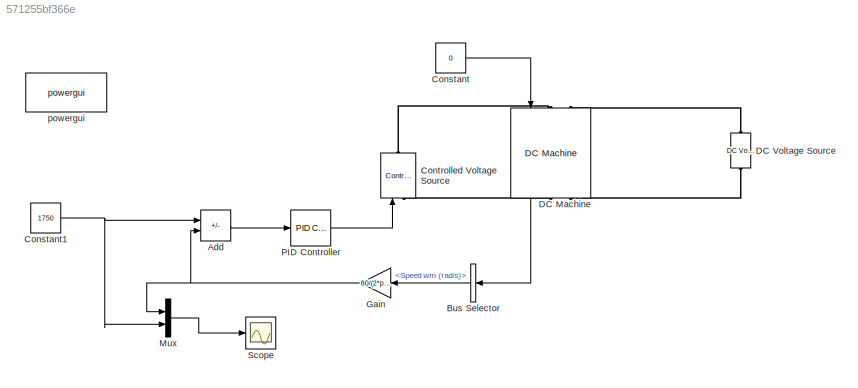
MODEL slx_571255bf366e
KIND model
CONFIG AbsTol = auto
CONFIG EnableMultiTasking = off
CONFIG FixedStep = auto
CONFIG MaxStep = auto
CONFIG MinStep = auto
CONFIG RelTol = 1e-3
CONFIG SampleTimeConstraint = Unconstrained
CONFIG SolverName = VariableStepAuto
CONFIG StartTime = 0.0
CONFIG StopTime = 10.0
BLOCK [Sum] Add
  IconShape = rectangular
  Inputs = +-
  Ports = [2, 1]
BLOCK [BusSelector] Bus Selector
  NameLocation = top
  OutputSignals = Speed wm (rad/s)
  Ports = [1, 1]
BLOCK [Constant] Constant
  Value = 0
BLOCK [Constant] Constant1
  Value = 1750
BLOCK [Reference] Controlled Voltage Source  REF=spsControlledVoltageSourceLib/Controlled Voltage Source
  Ports = [1, 0, 0, 0, 0, 1, 1]
  SourceBlock = spsControlledVoltageSourceLib/Controlled Voltage Source
  SourceProductBaseCode = PS
  SourceType = Controlled Voltage Source
BLOCK [Reference] DC Machine  REF=spsDCMachineLib/DC Machine
  NameLocation = right
  Ports = [1, 1, 0, 0, 0, 2, 2]
  SourceBlock = spsDCMachineLib/DC Machine
  SourceProductBaseCode = PS
  SourceType = DC machine
BLOCK [Reference] DC Voltage Source  REF=spsDCVoltageSourceLib/DC Voltage Source
  Ports = [0, 0, 0, 0, 0, 1, 1]
  SourceBlock = spsDCVoltageSourceLib/DC Voltage Source
  SourceProductBaseCode = PS
  SourceType = DC Voltage Source
BLOCK [Gain] Gain
  Gain = 60/(2*pi)
  NameLocation = top
BLOCK [Mux] Mux
  DisplayOption = bar
  Inputs = 2
  Ports = [2, 1]
BLOCK [Reference] PID Controller  REF=slpidlib/PID Controller
  Ports = [1, 1]
  SourceBlock = slpidlib/PID Controller
  SourceProductBaseCode = SL
  SourceType = PID 1dof
BLOCK [Scope] Scope
  Floating = off
  NumInputPorts = 1
  Ports = [1]
  ScopeSpecificationString = Simulink.scopes.TimeScopeBlockCfg('CurrentConfiguration', extmgr.ConfigurationSet(extmgr.Configuration('Core','General UI',true),extmgr.Configuration('Core','Source UI',true),extmgr.Configuration('Sources','WiredSimulink',true),extmgr.Configuration('Visuals','Time Domain',true,'SerializedDisplays',{struct('MinYLimReal','1523.67924','MaxYLimReal','1775.14675','YLabelReal','Speed','MinYLimMag','1523...<+1594ch>
BLOCK [Reference] powergui  REF=spspowerguiLib/powergui
  Ports = []
  Priority = 1
  SourceBlock = spspowerguiLib/powergui
  SourceProductBaseCode = PS
  SourceType = PSB option menu block
LINE Add:1 -> PID Controller:1
LINE Bus Selector:1 -> Gain:1
NET Constant1:1 -> Add:1, Mux:2
LINE Constant:1 -> DC Machine:1
LINE DC Machine:1 -> Bus Selector:1
NET Gain:1 -> Add:2, Mux:1
LINE Mux:1 -> Scope:1
LINE PID Controller:1 -> Controlled Voltage Source:1
PLINE Controlled Voltage Source:LConn1 -- DC Machine:RConn1
PLINE Controlled Voltage Source:RConn1 -- DC Machine:LConn1
PLINE DC Machine:LConn2 -- DC Voltage Source:RConn1
PLINE DC Machine:RConn2 -- DC Voltage Source:LConn1
note: NET lines group one-source signal fan-out (src -> all destinations, sorted); 1:1 wires keep LINE
